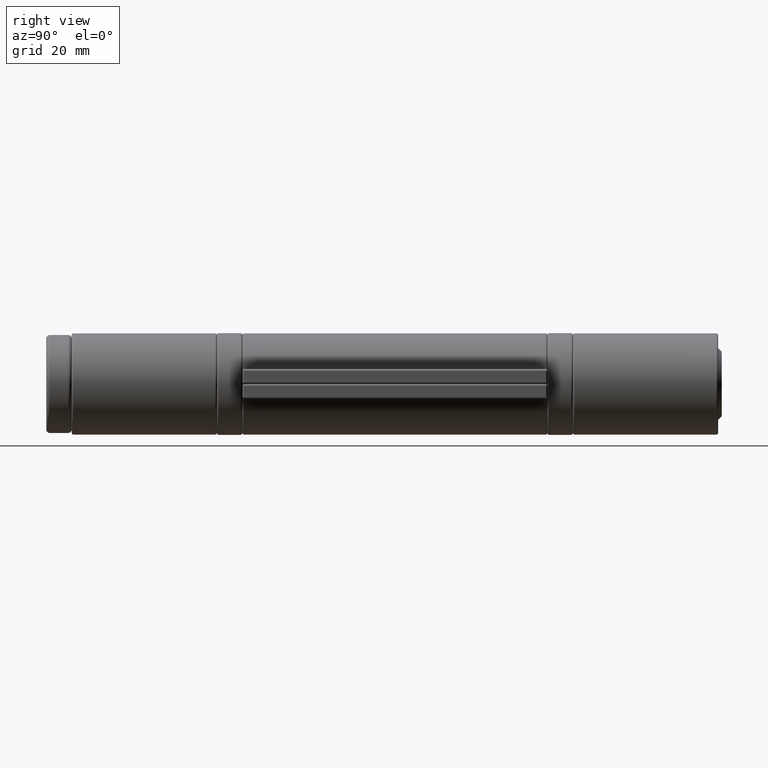
[diagram: clean part render]
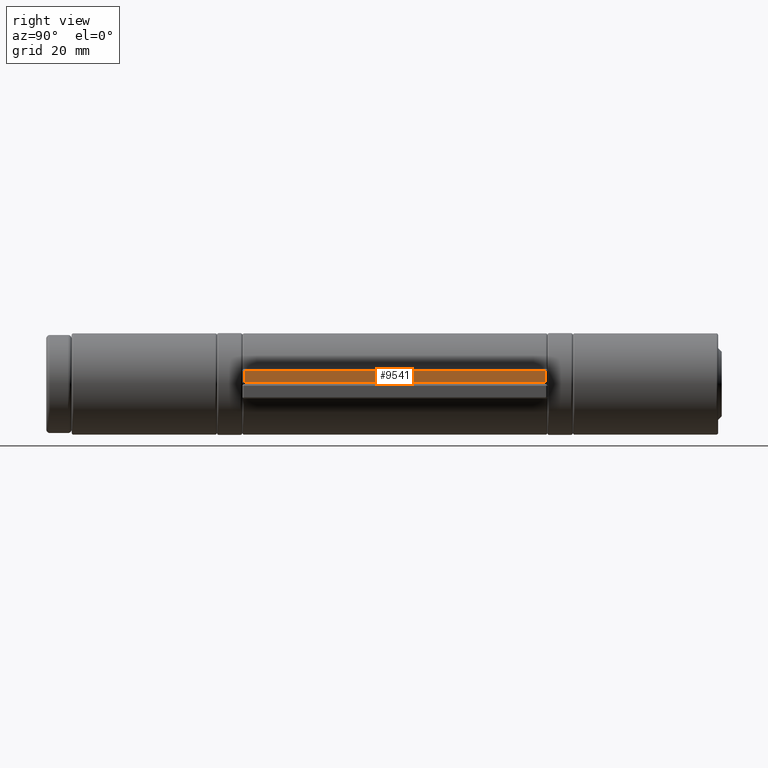
[diagram: same view with one face highlighted and labeled with its STEP entity id]
A machine part, right view. The second image highlights one B-rep face of the part: STEP entity #9541.
In plain terms, the highlighted planar face has unit normal (-1, 0, -0).
Its self-contained STEP definition (entity closure, byte-faithful):
#350 = PLANE ( 'NONE',  #6668 ) ;
#544 = VECTOR ( 'NONE', #6837, 1000.000000000000000 ) ;
#948 = EDGE_CURVE ( 'NONE', #6710, #5934, #3450, .T. ) ;
#2116 = LINE ( 'NONE', #2677, #544 ) ;
#2229 = CARTESIAN_POINT ( 'NONE',  ( -3.549999999999998934, -41.50000000000000000, 36.00000000000000000 ) ) ;
#2677 = CARTESIAN_POINT ( 'NONE',  ( 0.000000000000000000, -41.50000000000000000, 36.00000000000000000 ) ) ;
#3153 = CARTESIAN_POINT ( 'NONE',  ( -4.049999999999998934, 41.50000000000000000, 36.00000000000000000 ) ) ;
#3182 = EDGE_CURVE ( 'NONE', #4524, #6710, #4346, .T. ) ;
#3192 = DIRECTION ( 'NONE',  ( -1.000000000000000000, -0.000000000000000000, -0.000000000000000000 ) ) ;
#3431 = VECTOR ( 'NONE', #3192, 1000.000000000000000 ) ;
#3450 = LINE ( 'NONE', #7939, #8298 ) ;
#3503 = VECTOR ( 'NONE', #7373, 1000.000000000000000 ) ;
#3865 = FACE_OUTER_BOUND ( 'NONE', #4838, .T. ) ;
#4136 = ORIENTED_EDGE ( 'NONE', *, *, #10371, .T. ) ;
#4346 = LINE ( 'NONE', #3153, #3431 ) ;
#4510 = CARTESIAN_POINT ( 'NONE',  ( 0.000000000000000000, 42.00000000000000000, 36.00000000000000000 ) ) ;
#4524 = VERTEX_POINT ( 'NONE', #5089 ) ;
#4580 = DIRECTION ( 'NONE',  ( -1.000000000000000000, 0.000000000000000000, -0.000000000000000000 ) ) ;
#4588 = DIRECTION ( 'NONE',  ( 0.000000000000000000, -1.000000000000000000, 0.000000000000000000 ) ) ;
#4731 = CARTESIAN_POINT ( 'NONE',  ( -3.549999999999998934, 41.50000000000000000, 36.00000000000000000 ) ) ;
#4838 = EDGE_LOOP ( 'NONE', ( #9467, #4136, #9980, #9039 ) ) ;
#5089 = CARTESIAN_POINT ( 'NONE',  ( -0.5499999999999987121, 41.50000000000000000, 36.00000000000000000 ) ) ;
#5934 = VERTEX_POINT ( 'NONE', #2229 ) ;
#6668 = AXIS2_PLACEMENT_3D ( 'NONE', #4510, #8679, #4580 ) ;
#6710 = VERTEX_POINT ( 'NONE', #4731 ) ;
#6837 = DIRECTION ( 'NONE',  ( 1.000000000000000000, 0.000000000000000000, 0.000000000000000000 ) ) ;
#7300 = LINE ( 'NONE', #9770, #3503 ) ;
#7373 = DIRECTION ( 'NONE',  ( -0.000000000000000000, 1.000000000000000000, -0.000000000000000000 ) ) ;
#7939 = CARTESIAN_POINT ( 'NONE',  ( -3.549999999999998934, 42.00000000000000000, 36.00000000000000000 ) ) ;
#8046 = EDGE_CURVE ( 'NONE', #8806, #4524, #7300, .T. ) ;
#8298 = VECTOR ( 'NONE', #4588, 1000.000000000000000 ) ;
#8679 = DIRECTION ( 'NONE',  ( 0.000000000000000000, 0.000000000000000000, -1.000000000000000000 ) ) ;
#8806 = VERTEX_POINT ( 'NONE', #10826 ) ;
#9039 = ORIENTED_EDGE ( 'NONE', *, *, #3182, .T. ) ;
#9467 = ORIENTED_EDGE ( 'NONE', *, *, #948, .T. ) ;
#9541 = ADVANCED_FACE ( 'NONE', ( #3865 ), #350, .F. ) ;
#9770 = CARTESIAN_POINT ( 'NONE',  ( -0.5499999999999987121, 42.00000000000000000, 36.00000000000000000 ) ) ;
#9980 = ORIENTED_EDGE ( 'NONE', *, *, #8046, .T. ) ;
#10371 = EDGE_CURVE ( 'NONE', #5934, #8806, #2116, .T. ) ;
#10826 = CARTESIAN_POINT ( 'NONE',  ( -0.5499999999999987121, -41.50000000000000000, 36.00000000000000000 ) ) ;